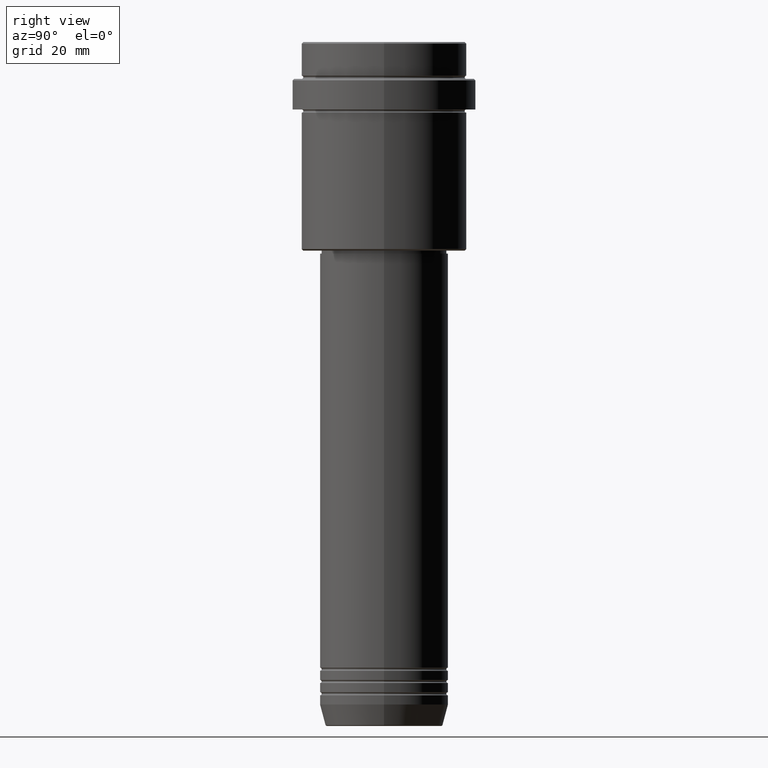
[diagram: clean part render]
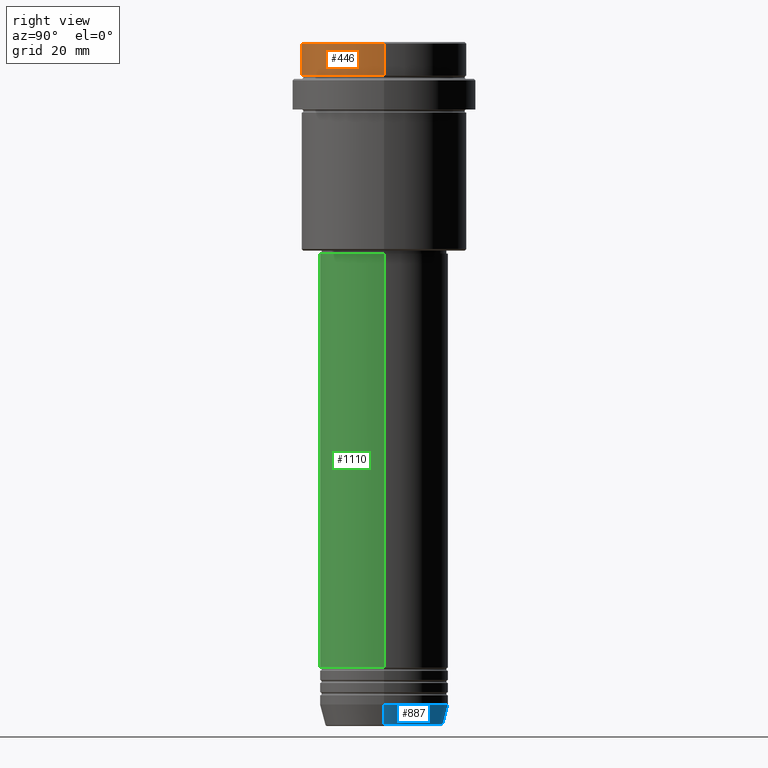
[diagram: same view with three faces highlighted in distinct colors, each labeled with its STEP entity id]
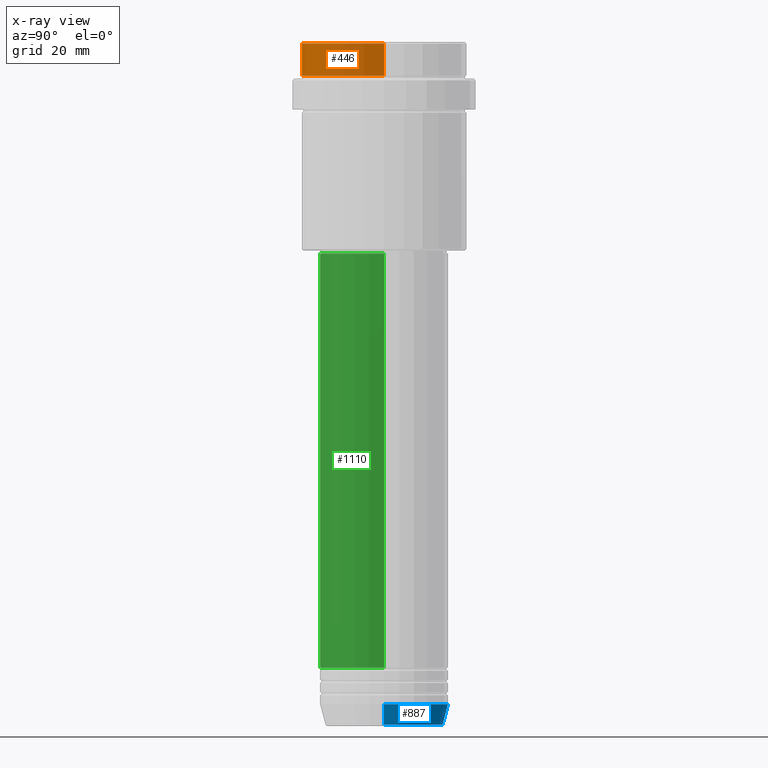
[diagram: x-ray of the same camera — body ghosted, the three highlighted faces saturated]
A machine part, right view with three faces highlighted in distinct colors.
The next image is the same camera in x-ray (body ghosted, the three faces saturated) — at least one of them is partly hidden behind the body in this view.
Their STEP definitions:

[orange] entity #446 — the highlighted cylindrical surface (partial cylindrical patch) has radius 27 mm, axis along (-0, -0, 1).
#64 = CARTESIAN_POINT ( 'NONE',  ( 0.000000000000000000, 0.000000000000000000, -11.00000000000000178 ) ) ;
#91 = CARTESIAN_POINT ( 'NONE',  ( 26.99999999999999645, 0.000000000000000000, -11.00000000000000178 ) ) ;
#111 = ORIENTED_EDGE ( 'NONE', *, *, #1210, .T. ) ;
#152 = ORIENTED_EDGE ( 'NONE', *, *, #903, .T. ) ;
#178 = LINE ( 'NONE', #619, #1217 ) ;
#208 = VECTOR ( 'NONE', #1203, 1000.000000000000000 ) ;
#234 = ORIENTED_EDGE ( 'NONE', *, *, #927, .F. ) ;
#325 = FACE_OUTER_BOUND ( 'NONE', #1002, .T. ) ;
#360 = ORIENTED_EDGE ( 'NONE', *, *, #433, .T. ) ;
#365 = VERTEX_POINT ( 'NONE', #1401 ) ;
#370 = VERTEX_POINT ( 'NONE', #521 ) ;
#387 = VERTEX_POINT ( 'NONE', #841 ) ;
#433 = EDGE_CURVE ( 'NONE', #365, #387, #742, .T. ) ;
#446 = ADVANCED_FACE ( 'NONE', ( #325 ), #766, .T. ) ;
#510 = DIRECTION ( 'NONE',  ( -0.000000000000000000, -0.000000000000000000, 1.000000000000000000 ) ) ;
#521 = CARTESIAN_POINT ( 'NONE',  ( -26.99999999999999645, 3.306546357697853339E-15, -11.00000000000000178 ) ) ;
#619 = CARTESIAN_POINT ( 'NONE',  ( -26.99999999999999645, 3.306546357697853339E-15, 0.000000000000000000 ) ) ;
#649 = AXIS2_PLACEMENT_3D ( 'NONE', #1197, #660, #772 ) ;
#660 = DIRECTION ( 'NONE',  ( -0.000000000000000000, -0.000000000000000000, 1.000000000000000000 ) ) ;
#742 = CIRCLE ( 'NONE', #873, 26.99999999999999645 ) ;
#750 = CARTESIAN_POINT ( 'NONE',  ( 26.99999999999999645, 0.000000000000000000, 0.000000000000000000 ) ) ;
#766 = CYLINDRICAL_SURFACE ( 'NONE', #649, 26.99999999999999645 ) ;
#772 = DIRECTION ( 'NONE',  ( 1.000000000000000000, 0.000000000000000000, 0.000000000000000000 ) ) ;
#841 = CARTESIAN_POINT ( 'NONE',  ( -26.99999999999999645, 3.306546357697853339E-15, -0.5000000000000316414 ) ) ;
#873 = AXIS2_PLACEMENT_3D ( 'NONE', #979, #1317, #985 ) ;
#903 = EDGE_CURVE ( 'NONE', #370, #1221, #968, .T. ) ;
#927 = EDGE_CURVE ( 'NONE', #370, #387, #178, .T. ) ;
#968 = CIRCLE ( 'NONE', #1133, 26.99999999999999645 ) ;
#979 = CARTESIAN_POINT ( 'NONE',  ( 0.000000000000000000, 0.000000000000000000, -0.5000000000000316414 ) ) ;
#985 = DIRECTION ( 'NONE',  ( 1.000000000000000000, 0.000000000000000000, 0.000000000000000000 ) ) ;
#1002 = EDGE_LOOP ( 'NONE', ( #234, #152, #111, #360 ) ) ;
#1133 = AXIS2_PLACEMENT_3D ( 'NONE', #64, #1404, #1394 ) ;
#1197 = CARTESIAN_POINT ( 'NONE',  ( 0.000000000000000000, 0.000000000000000000, 0.000000000000000000 ) ) ;
#1203 = DIRECTION ( 'NONE',  ( -0.000000000000000000, -0.000000000000000000, 1.000000000000000000 ) ) ;
#1210 = EDGE_CURVE ( 'NONE', #1221, #365, #1324, .T. ) ;
#1217 = VECTOR ( 'NONE', #510, 1000.000000000000000 ) ;
#1221 = VERTEX_POINT ( 'NONE', #91 ) ;
#1317 = DIRECTION ( 'NONE',  ( 0.000000000000000000, 0.000000000000000000, -1.000000000000000000 ) ) ;
#1324 = LINE ( 'NONE', #750, #208 ) ;
#1394 = DIRECTION ( 'NONE',  ( 1.000000000000000000, 0.000000000000000000, 0.000000000000000000 ) ) ;
#1401 = CARTESIAN_POINT ( 'NONE',  ( 26.99999999999999645, 0.000000000000000000, -0.5000000000000316414 ) ) ;
#1404 = DIRECTION ( 'NONE',  ( -0.000000000000000000, -0.000000000000000000, 1.000000000000000000 ) ) ;

[blue] entity #887 — the highlighted conical surface has half-angle 15 deg.
#18 = VERTEX_POINT ( 'NONE', #139 ) ;
#121 = ORIENTED_EDGE ( 'NONE', *, *, #1353, .F. ) ;
#139 = CARTESIAN_POINT ( 'NONE',  ( -21.00000000000000000, 2.571758278209441661E-15, -215.9999999999999716 ) ) ;
#187 = CONICAL_SURFACE ( 'NONE', #651, 21.00000000000000000, 0.2617993877991500740 ) ;
#190 = CARTESIAN_POINT ( 'NONE',  ( 0.000000000000000000, 0.000000000000000000, -222.6294095225512422 ) ) ;
#229 = EDGE_CURVE ( 'NONE', #332, #18, #1238, .T. ) ;
#259 = ORIENTED_EDGE ( 'NONE', *, *, #229, .F. ) ;
#268 = EDGE_CURVE ( 'NONE', #1094, #898, #671, .T. ) ;
#317 = CARTESIAN_POINT ( 'NONE',  ( 21.00000000000000000, 0.000000000000000000, -215.9999999999999716 ) ) ;
#332 = VERTEX_POINT ( 'NONE', #317 ) ;
#400 = VECTOR ( 'NONE', #1355, 1000.000000000000000 ) ;
#457 = ORIENTED_EDGE ( 'NONE', *, *, #1270, .T. ) ;
#516 = DIRECTION ( 'NONE',  ( -0.000000000000000000, -0.000000000000000000, 1.000000000000000000 ) ) ;
#620 = CARTESIAN_POINT ( 'NONE',  ( 19.22365507213719127, 0.000000000000000000, -222.6294095225512422 ) ) ;
#624 = AXIS2_PLACEMENT_3D ( 'NONE', #932, #1369, #1407 ) ;
#651 = AXIS2_PLACEMENT_3D ( 'NONE', #958, #743, #1046 ) ;
#671 = CIRCLE ( 'NONE', #1286, 19.22365507213719127 ) ;
#706 = LINE ( 'NONE', #1341, #1222 ) ;
#743 = DIRECTION ( 'NONE',  ( -0.000000000000000000, -0.000000000000000000, 1.000000000000000000 ) ) ;
#785 = CARTESIAN_POINT ( 'NONE',  ( -21.00000000000000000, 2.571758278209441661E-15, -215.9999999999999716 ) ) ;
#887 = ADVANCED_FACE ( 'NONE', ( #1165 ), #187, .T. ) ;
#898 = VERTEX_POINT ( 'NONE', #1173 ) ;
#910 = DIRECTION ( 'NONE',  ( 0.2588190451025213501, 0.000000000000000000, 0.9659258262890680902 ) ) ;
#916 = LINE ( 'NONE', #785, #400 ) ;
#932 = CARTESIAN_POINT ( 'NONE',  ( 0.000000000000000000, 0.000000000000000000, -215.9999999999999716 ) ) ;
#958 = CARTESIAN_POINT ( 'NONE',  ( 0.000000000000000000, 0.000000000000000000, -215.9999999999999716 ) ) ;
#1046 = DIRECTION ( 'NONE',  ( 1.000000000000000000, 0.000000000000000000, 0.000000000000000000 ) ) ;
#1094 = VERTEX_POINT ( 'NONE', #620 ) ;
#1165 = FACE_OUTER_BOUND ( 'NONE', #1248, .T. ) ;
#1173 = CARTESIAN_POINT ( 'NONE',  ( -19.22365507213719127, 2.462988521705000655E-15, -222.6294095225512422 ) ) ;
#1222 = VECTOR ( 'NONE', #910, 1000.000000000000000 ) ;
#1228 = ORIENTED_EDGE ( 'NONE', *, *, #268, .T. ) ;
#1238 = CIRCLE ( 'NONE', #624, 21.00000000000000000 ) ;
#1248 = EDGE_LOOP ( 'NONE', ( #1228, #457, #259, #121 ) ) ;
#1270 = EDGE_CURVE ( 'NONE', #898, #18, #916, .T. ) ;
#1286 = AXIS2_PLACEMENT_3D ( 'NONE', #190, #516, #1393 ) ;
#1341 = CARTESIAN_POINT ( 'NONE',  ( 21.00000000000000000, 0.000000000000000000, -215.9999999999999716 ) ) ;
#1353 = EDGE_CURVE ( 'NONE', #1094, #332, #706, .T. ) ;
#1355 = DIRECTION ( 'NONE',  ( -0.2588190451025213501, 3.169619151431772337E-17, 0.9659258262890680902 ) ) ;
#1369 = DIRECTION ( 'NONE',  ( -0.000000000000000000, -0.000000000000000000, 1.000000000000000000 ) ) ;
#1393 = DIRECTION ( 'NONE',  ( 1.000000000000000000, 0.000000000000000000, 0.000000000000000000 ) ) ;
#1407 = DIRECTION ( 'NONE',  ( 1.000000000000000000, 0.000000000000000000, 0.000000000000000000 ) ) ;

[green] entity #1110 — the highlighted cylindrical surface (partial cylindrical patch) has radius 21 mm, axis along (-0, -0, 1).
#20 = VERTEX_POINT ( 'NONE', #445 ) ;
#33 = AXIS2_PLACEMENT_3D ( 'NONE', #823, #1257, #1166 ) ;
#41 = CARTESIAN_POINT ( 'NONE',  ( 20.99999999999999645, 0.000000000000000000, 0.000000000000000000 ) ) ;
#67 = CARTESIAN_POINT ( 'NONE',  ( 0.000000000000000000, 0.000000000000000000, -68.99999999999997158 ) ) ;
#83 = DIRECTION ( 'NONE',  ( 1.000000000000000000, 0.000000000000000000, 0.000000000000000000 ) ) ;
#84 = EDGE_CURVE ( 'NONE', #782, #569, #597, .T. ) ;
#149 = EDGE_CURVE ( 'NONE', #20, #782, #508, .T. ) ;
#209 = CARTESIAN_POINT ( 'NONE',  ( -20.99999999999999645, 2.571758278209441267E-15, 0.000000000000000000 ) ) ;
#215 = DIRECTION ( 'NONE',  ( -0.000000000000000000, -0.000000000000000000, 1.000000000000000000 ) ) ;
#240 = EDGE_LOOP ( 'NONE', ( #1004, #953, #1001, #842 ) ) ;
#350 = VECTOR ( 'NONE', #592, 1000.000000000000000 ) ;
#362 = EDGE_CURVE ( 'NONE', #1211, #569, #699, .T. ) ;
#435 = LINE ( 'NONE', #209, #1151 ) ;
#445 = CARTESIAN_POINT ( 'NONE',  ( -21.00000000000000000, 2.571758278209441661E-15, -203.9999999999998579 ) ) ;
#508 = CIRCLE ( 'NONE', #1213, 21.00000000000000000 ) ;
#569 = VERTEX_POINT ( 'NONE', #648 ) ;
#592 = DIRECTION ( 'NONE',  ( -0.000000000000000000, -0.000000000000000000, 1.000000000000000000 ) ) ;
#597 = LINE ( 'NONE', #41, #350 ) ;
#613 = CARTESIAN_POINT ( 'NONE',  ( 21.00000000000000000, 0.000000000000000000, -203.9999999999998579 ) ) ;
#637 = CYLINDRICAL_SURFACE ( 'NONE', #33, 20.99999999999999645 ) ;
#648 = CARTESIAN_POINT ( 'NONE',  ( 20.99999999999999645, 0.000000000000000000, -68.99999999999997158 ) ) ;
#699 = CIRCLE ( 'NONE', #1191, 20.99999999999999645 ) ;
#701 = DIRECTION ( 'NONE',  ( 1.000000000000000000, 0.000000000000000000, 0.000000000000000000 ) ) ;
#728 = FACE_OUTER_BOUND ( 'NONE', #240, .T. ) ;
#763 = CARTESIAN_POINT ( 'NONE',  ( -20.99999999999999645, 2.571758278209441267E-15, -68.99999999999997158 ) ) ;
#782 = VERTEX_POINT ( 'NONE', #613 ) ;
#823 = CARTESIAN_POINT ( 'NONE',  ( 0.000000000000000000, 0.000000000000000000, 0.000000000000000000 ) ) ;
#842 = ORIENTED_EDGE ( 'NONE', *, *, #362, .F. ) ;
#917 = CARTESIAN_POINT ( 'NONE',  ( 0.000000000000000000, 0.000000000000000000, -203.9999999999998579 ) ) ;
#930 = EDGE_CURVE ( 'NONE', #20, #1211, #435, .T. ) ;
#952 = DIRECTION ( 'NONE',  ( -0.000000000000000000, -0.000000000000000000, 1.000000000000000000 ) ) ;
#953 = ORIENTED_EDGE ( 'NONE', *, *, #149, .T. ) ;
#1001 = ORIENTED_EDGE ( 'NONE', *, *, #84, .T. ) ;
#1004 = ORIENTED_EDGE ( 'NONE', *, *, #930, .F. ) ;
#1110 = ADVANCED_FACE ( 'NONE', ( #728 ), #637, .T. ) ;
#1151 = VECTOR ( 'NONE', #215, 1000.000000000000000 ) ;
#1159 = DIRECTION ( 'NONE',  ( -0.000000000000000000, -0.000000000000000000, 1.000000000000000000 ) ) ;
#1166 = DIRECTION ( 'NONE',  ( 1.000000000000000000, 0.000000000000000000, 0.000000000000000000 ) ) ;
#1191 = AXIS2_PLACEMENT_3D ( 'NONE', #67, #952, #83 ) ;
#1211 = VERTEX_POINT ( 'NONE', #763 ) ;
#1213 = AXIS2_PLACEMENT_3D ( 'NONE', #917, #1159, #701 ) ;
#1257 = DIRECTION ( 'NONE',  ( -0.000000000000000000, -0.000000000000000000, 1.000000000000000000 ) ) ;